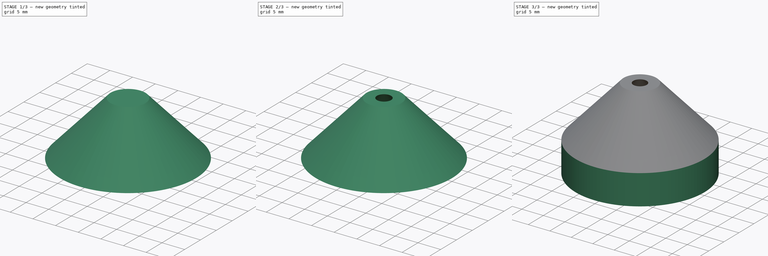
[diagram: build sequence overview — one tinted view per stage of 3, left to right]
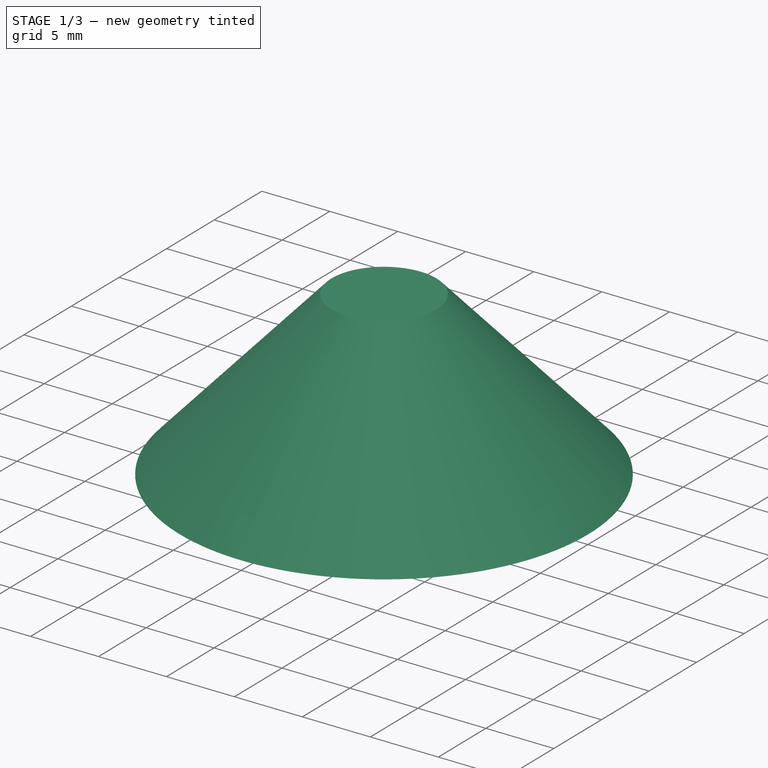
[diagram: stage 1 of 3 — iso view after this stage's code; geometry added in this stage tinted green]
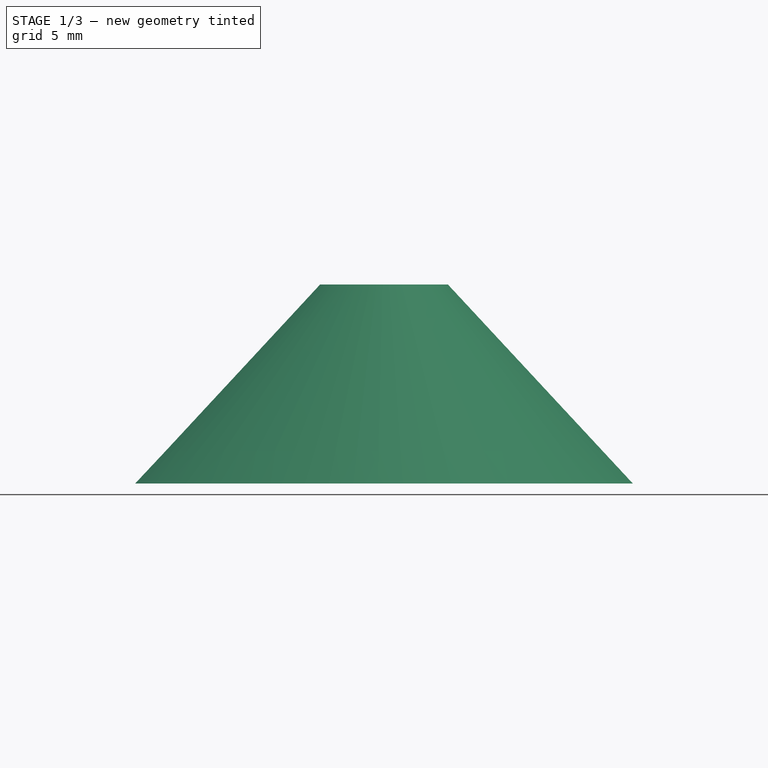
[diagram: stage 1 of 3 — front view after this stage's code; geometry added in this stage tinted green]
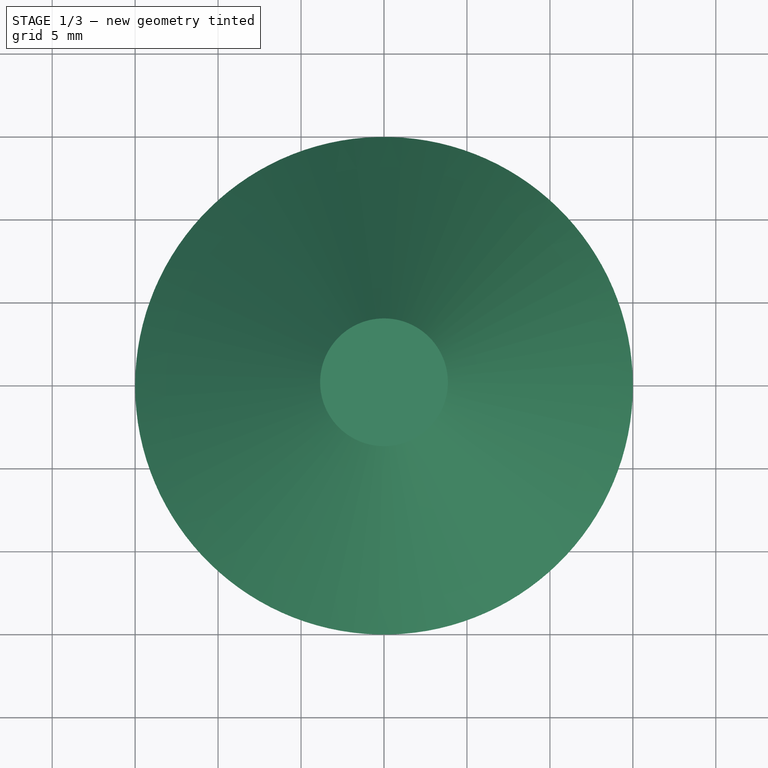
[diagram: stage 1 of 3 — top view after this stage's code; geometry added in this stage tinted green]
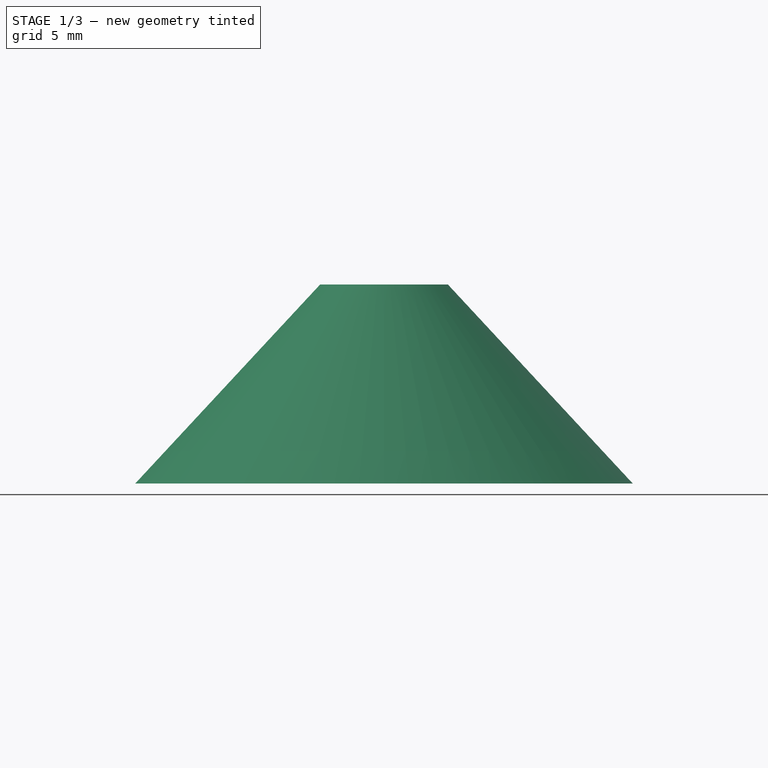
[diagram: stage 1 of 3 — right view after this stage's code; geometry added in this stage tinted green]
FCSTD DOCUMENT  (FreeCAD 0.17R13541 (Git))
Label: Zahnbuerstenspueler_MOF
License: All rights reserved
LicenseURL: http://en.wikipedia.org/wiki/All_rights_reserved
objects: Sketcher::SketchObject×2, PartDesign::Pad×2, PartDesign::Body×2, Part::Cone×2, Part::Cut×1
note: 11 computed .brp shape members not serialized (recipe doc carries the construction recipe); baked Part::Feature solids carry a one-line shape summary decoded from their .brp

FEATURE [PartDesign::Body] Body001  label="Oben1"
  Group = -> [Sketch,Pad001]
  Origin = -> Origin001
  Tip = -> Pad001
FEATURE [Part::Cone] Cone  label="Kegel"
  Angle = 360
  AttacherType = Attacher::AttachEngine3D
  Height = 12
  Placement = pos=(0,0,7) rot=(0,0,1;0rad)
  Radius1 = 15
  Radius2 = 3.85
FEATURE [Part::Cone] Cone001  label="Kegel001"
  Angle = 360
  AttacherType = Attacher::AttachEngine3D
  Height = 12
  Placement = pos=(0,0,7) rot=(0,0,1;0rad)
  Radius1 = 12
  Radius2 = 1.575
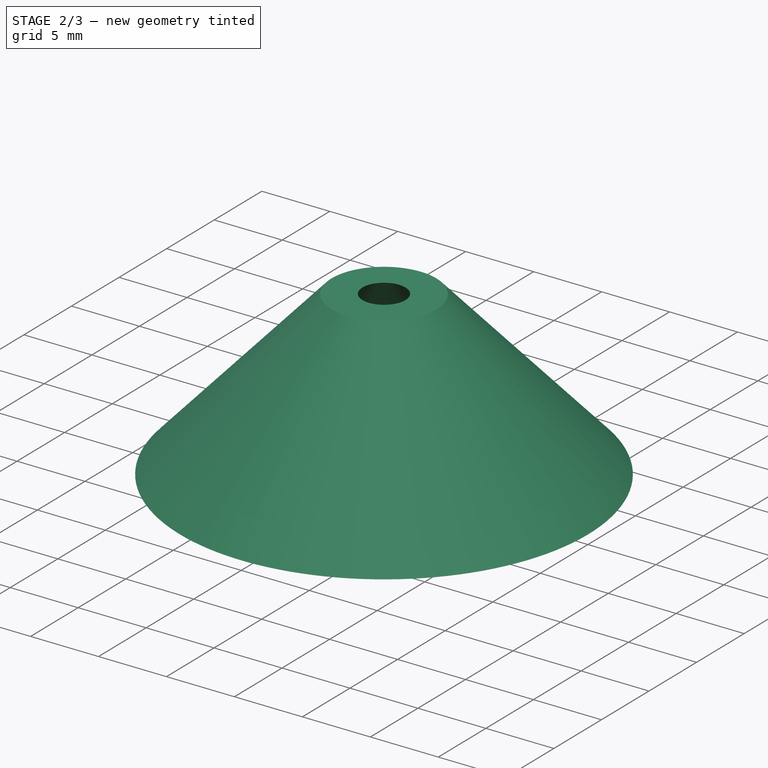
[diagram: stage 2 of 3 — iso view after this stage's code; geometry added in this stage tinted green]
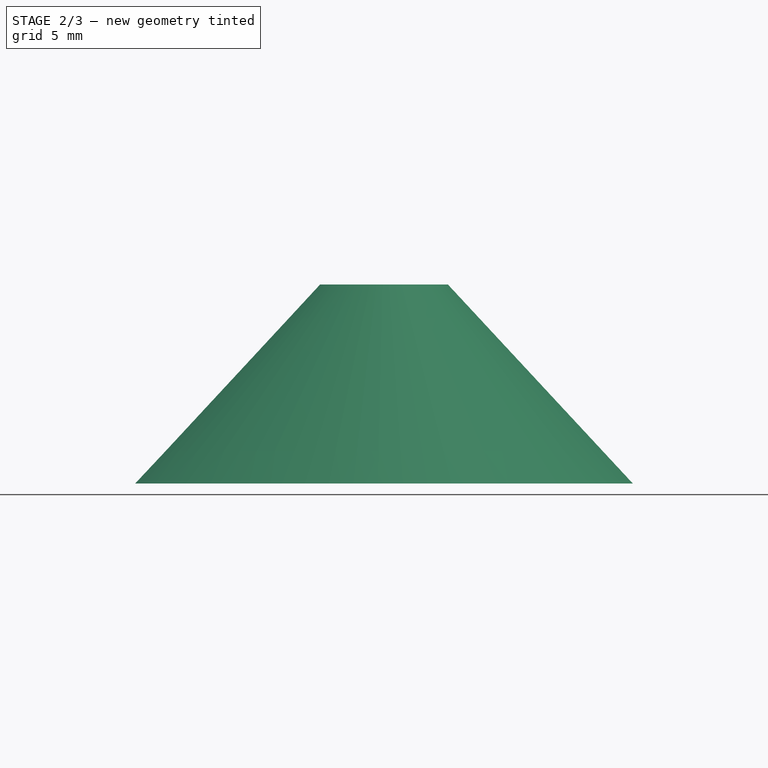
[diagram: stage 2 of 3 — front view after this stage's code; geometry added in this stage tinted green]
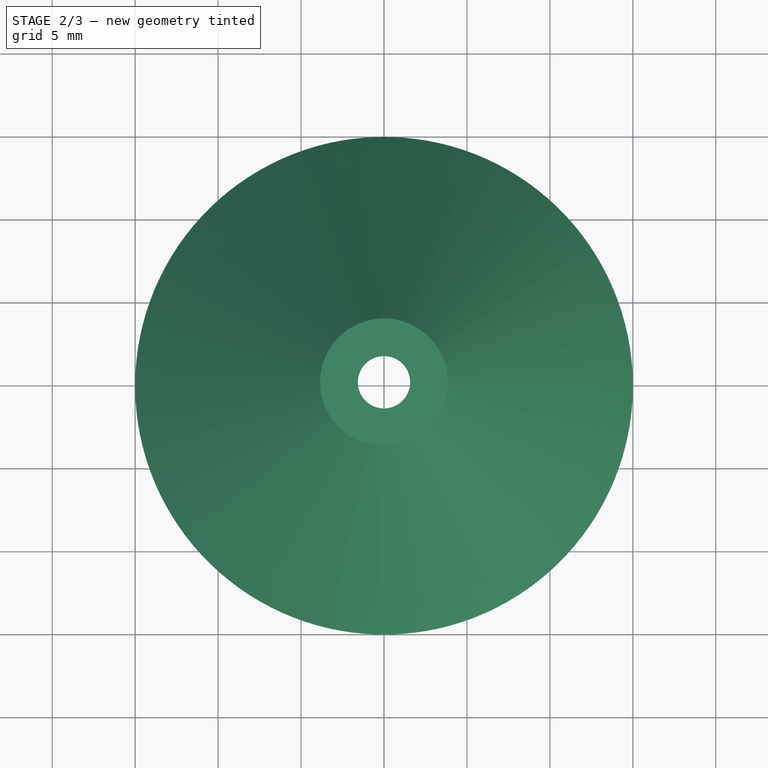
[diagram: stage 2 of 3 — top view after this stage's code; geometry added in this stage tinted green]
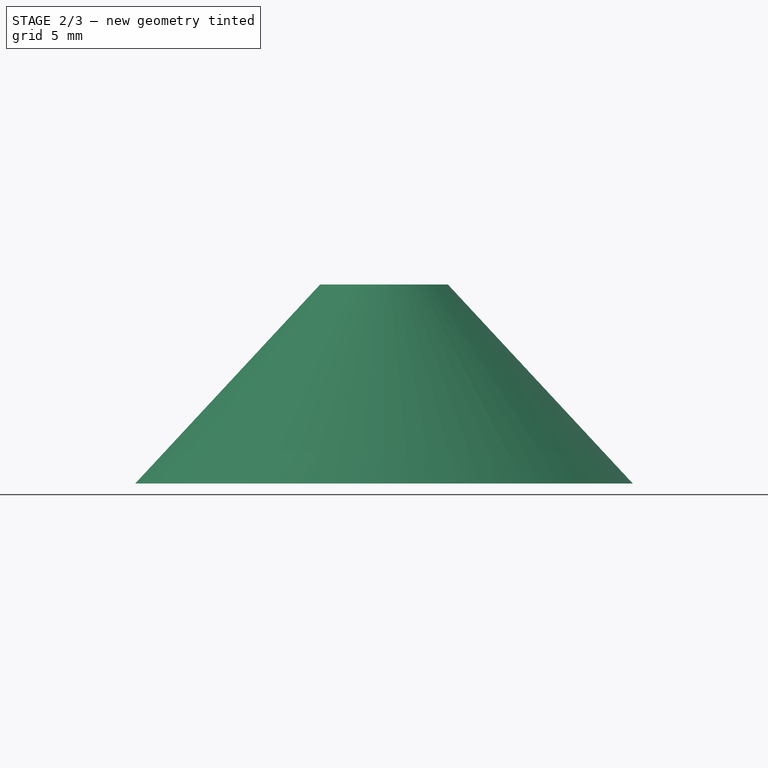
[diagram: stage 2 of 3 — right view after this stage's code; geometry added in this stage tinted green]
FEATURE [Part::Cut] Cut
  Base = -> Cone
  Tool = -> Cone001
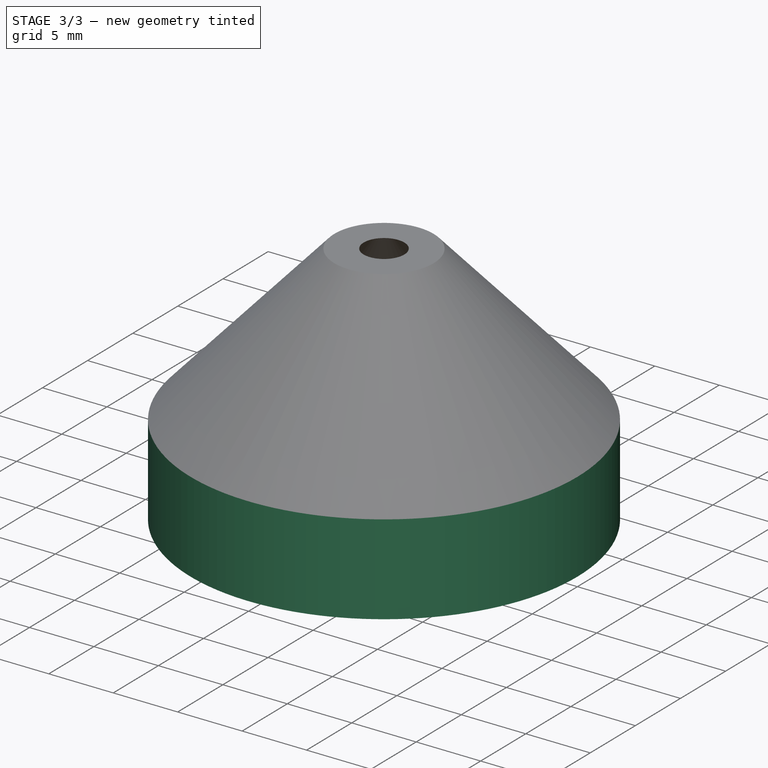
[diagram: stage 3 of 3 — iso view after this stage's code; geometry added in this stage tinted green]
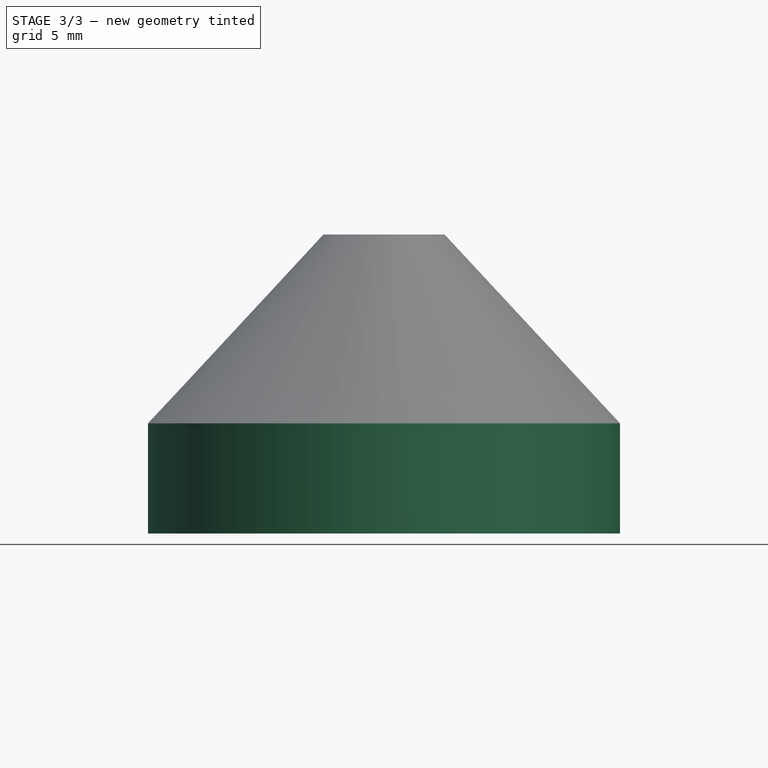
[diagram: stage 3 of 3 — front view after this stage's code; geometry added in this stage tinted green]
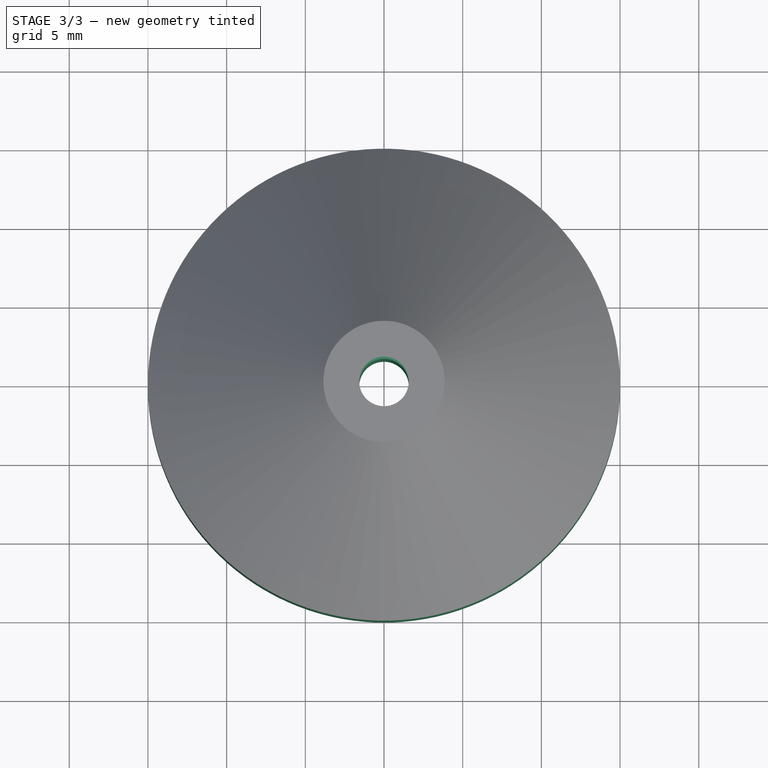
[diagram: stage 3 of 3 — top view after this stage's code; geometry added in this stage tinted green]
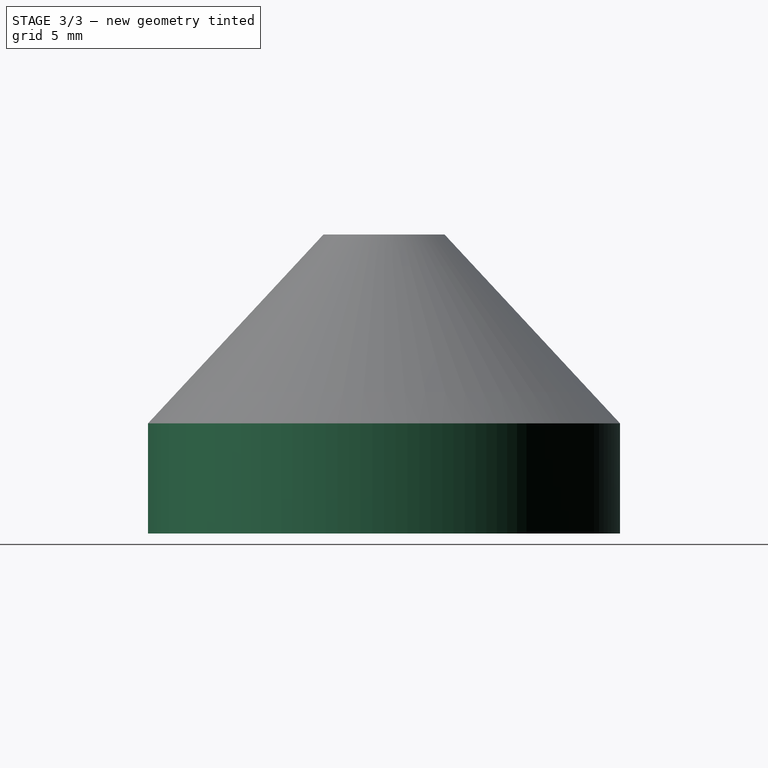
[diagram: stage 3 of 3 — right view after this stage's code; geometry added in this stage tinted green]
FEATURE [Sketcher::SketchObject] Sketch  label="Zylinder_oben"
  sketch-geometry (2):
    g0: Circle CenterX=0 CenterY=0 CenterZ=0 NormalX=0 NormalY=0 NormalZ=1 AngleXU=0 Radius=12
    g1: Circle CenterX=0 CenterY=0 CenterZ=0 NormalX=0 NormalY=0 NormalZ=1 AngleXU=0 Radius=15
  constraints (4):
    c: Coincident(g0,g-1)
    c: Coincident(g1,g-1)
    c: Radius(g1) = 15
    c: Radius(g0) = 12
FEATURE [Sketcher::SketchObject] Sketch002  label="Buerstenaufnahme"
  MapMode = 5
  Support = -> [XY_Plane]
  expr: Constraints[1] = 7.7000000000000002 / 2
  expr: Constraints[17] = 3.1499999999999999 / 2
  sketch-geometry (9):
    g0: Circle [constr] CenterX=0 CenterY=0 CenterZ=0 NormalX=0 NormalY=0 NormalZ=1 AngleXU=0 Radius=3.85
    g1: LineSegment StartX=-2.35 StartY=3.04959 StartZ=0 EndX=-2.66401 EndY=0 EndZ=0
    g2: LineSegment StartX=2.66401 StartY=0 StartZ=0 EndX=2.35 EndY=-3.04959 EndZ=0
    g3: LineSegment StartX=2.35 StartY=3.04959 StartZ=0 EndX=2.66401 EndY=0 EndZ=0
    g4: LineSegment StartX=-2.66401 StartY=0 StartZ=0 EndX=-1.75492 EndY=-1.56437 EndZ=0
    g5: LineSegment StartX=-2.35 StartY=-3.04959 StartZ=0 EndX=-1.75492 EndY=-1.56437 EndZ=0
    g6: Circle CenterX=0 CenterY=0 CenterZ=0 NormalX=0 NormalY=0 NormalZ=1 AngleXU=0 Radius=1.575
    g7: ArcOfCircle CenterX=0 CenterY=0 CenterZ=0 NormalX=0 NormalY=0 NormalZ=1 AngleXU=0 Radius=3.85 StartAngle=0.914244 EndAngle=2.22735
    g8: ArcOfCircle CenterX=0 CenterY=0 CenterZ=0 NormalX=0 NormalY=0 NormalZ=1 AngleXU=0 Radius=3.85 StartAngle=4.05584 EndAngle=5.36894
  constraints (25):
    c: Coincident(g0,g-1)
    c: Radius(g0) = 3.85
    c: Parallel(g1,g2)
    c: Distance(g2,g1) = 5.3
    c: PointOnObject(g2,g0)
    c: PointOnObject(g1,g0)
    c: Distance(g1,g3) = 5.3
    c: Coincident(g2,g3)
    c: PointOnObject(g3,g0)
    c: PointOnObject(g5,g0)
    c: PointOnObject(g1,g-1)
    c: PointOnObject(g2,g-1)
    c: Symmetric(g2,g1,g-1)
    c: DistanceX(g1,g3) = 4.7
    c: Coincident(g5,g4)
    c: Coincident(g1,g4)
    c: Coincident(g6,g-1)
    c: Radius(g6) = 1.575
    c: Distance(g5) = 1.6
    c: Coincident(g7,g-1)
    c: Coincident(g7,g1)
    c: Coincident(g7,g3)
    c: Coincident(g8,g-1)
    c: Coincident(g8,g2)
    c: Coincident(g8,g5)
FEATURE [PartDesign::Pad] Pad
  Length = 11
  Length2 = 100
  Profile = -> Sketch002
  Type = 0
FEATURE [PartDesign::Body] Body  label="Aufnahme"
  Group = -> [Sketch002,Pad]
  Origin = -> Origin
  Placement = pos=(0,0,19) rot=(0,0,1;0rad)
  Tip = -> Pad
FEATURE [PartDesign::Pad] Pad001
  Length = 7
  Length2 = 100
  Profile = -> Sketch
  Type = 0
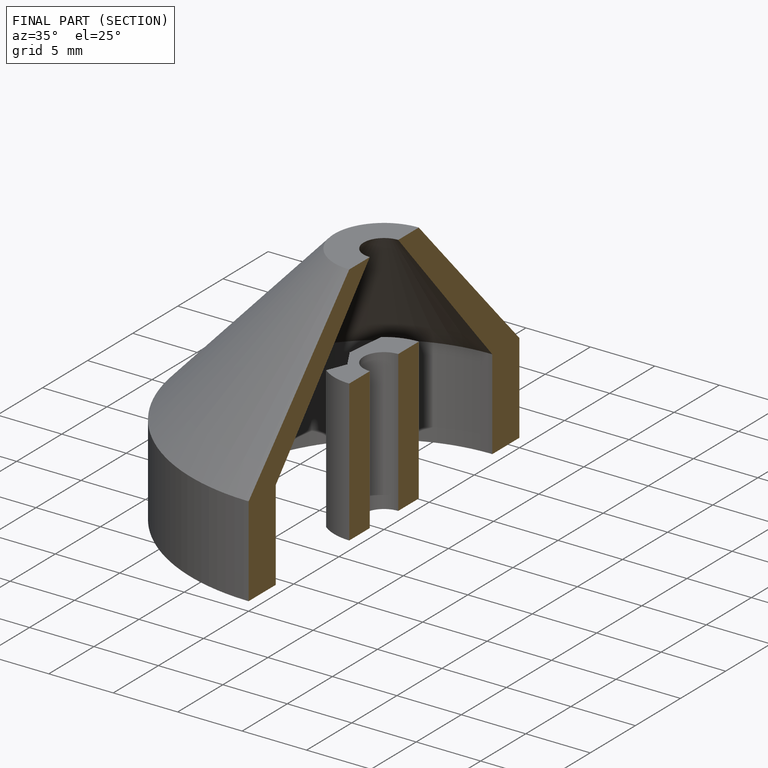
[diagram: finished part — half-section view (interior)]
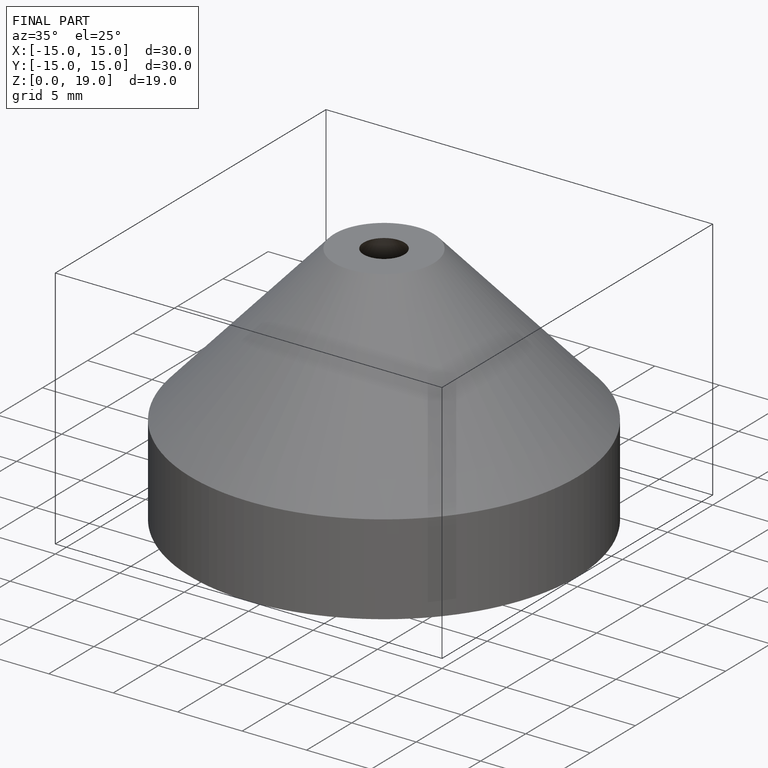
[diagram: finished part — iso view with bounding-box wireframe]
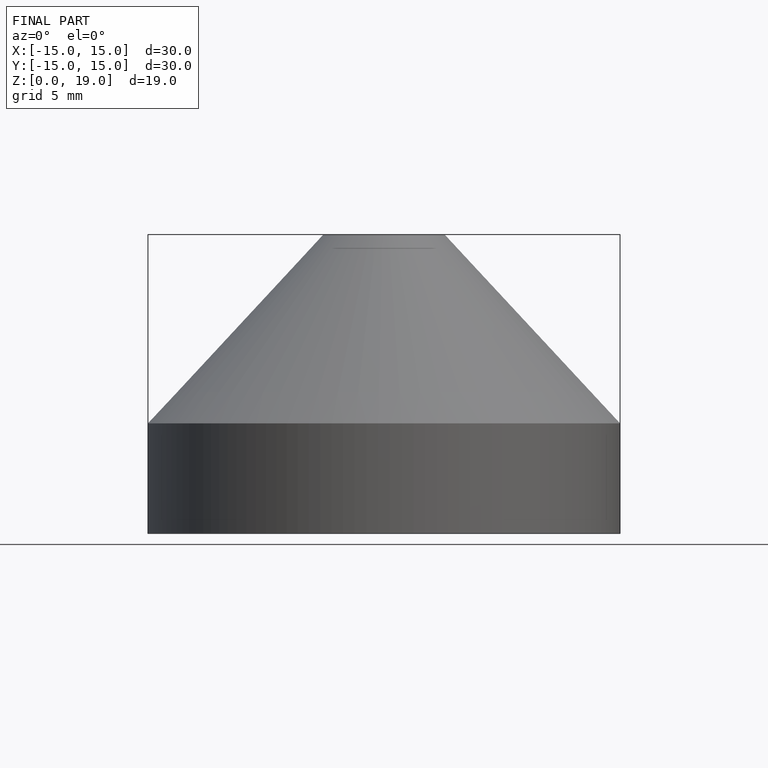
[diagram: finished part — front view with bounding-box wireframe]
